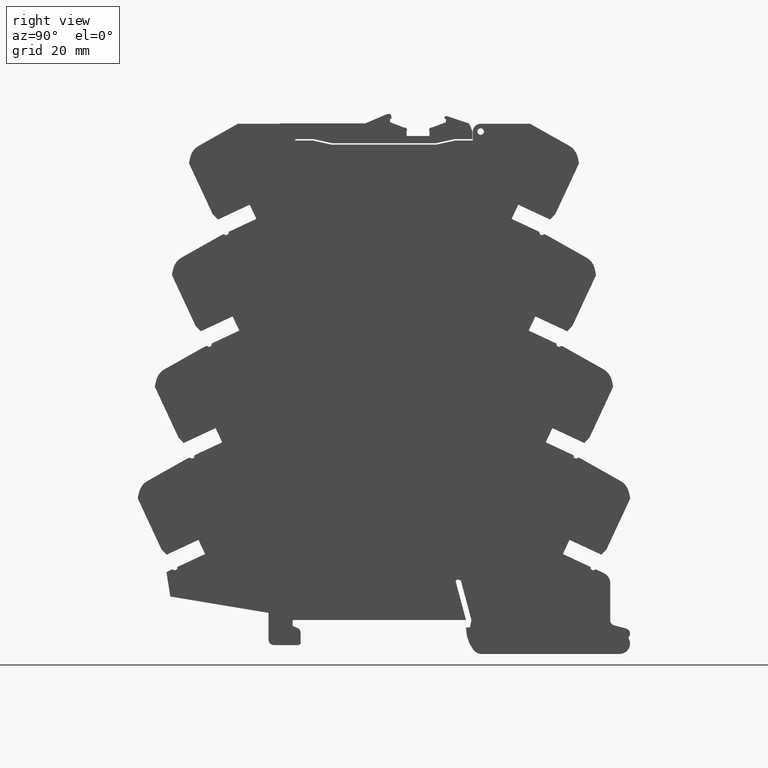
[diagram: clean part render]
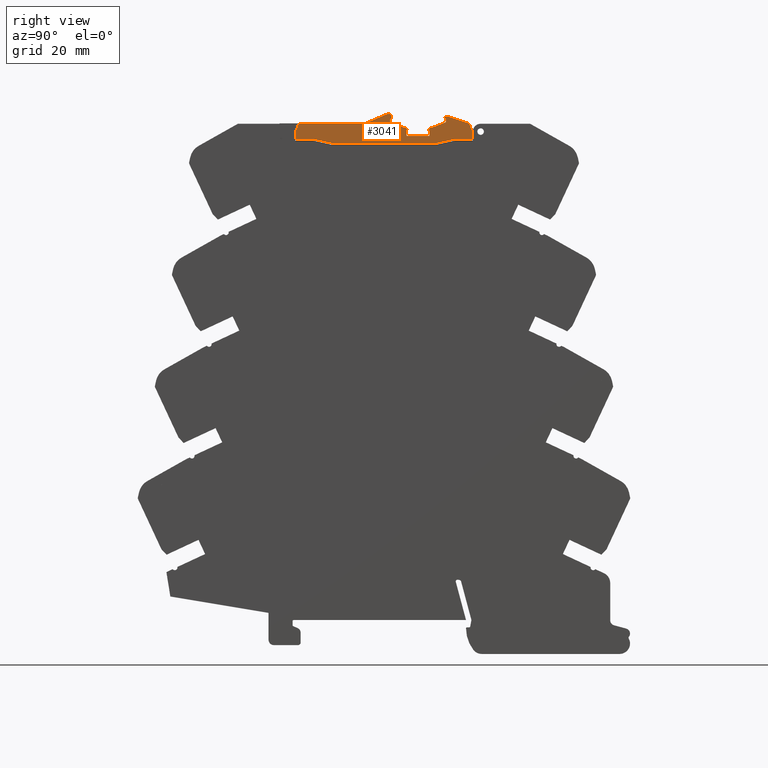
[diagram: same view with one face highlighted and labeled with its STEP entity id]
A machine part, right view. The second image highlights one B-rep face of the part: STEP entity #3041.
In plain terms, the highlighted planar face has unit normal (-1, 0, 0).
Its self-contained STEP definition (entity closure, byte-faithful):
#47 = DIRECTION ( 'NONE',  ( -1.000000000000000000, -0.000000000000000000, -0.000000000000000000 ) ) ;
#96 = EDGE_CURVE ( 'NONE', #5823, #9020, #3386, .T. ) ;
#122 = ORIENTED_EDGE ( 'NONE', *, *, #4044, .F. ) ;
#157 = CARTESIAN_POINT ( 'NONE',  ( -0.003937007874015747977, 0.06157480314960452755, 3.770098425196850567 ) ) ;
#163 = VECTOR ( 'NONE', #1775, 39.37007874015748143 ) ;
#216 = CARTESIAN_POINT ( 'NONE',  ( -0.003937007874015747977, 0.3785039370078739918, 3.711830708661417511 ) ) ;
#222 = EDGE_CURVE ( 'NONE', #632, #3673, #6010, .T. ) ;
#230 = VERTEX_POINT ( 'NONE', #403 ) ;
#232 = CARTESIAN_POINT ( 'NONE',  ( -0.003937007874015747977, 0.1891535569582921406, 3.694074803149606456 ) ) ;
#316 = EDGE_CURVE ( 'NONE', #3697, #7672, #4851, .T. ) ;
#332 = ORIENTED_EDGE ( 'NONE', *, *, #1248, .T. ) ;
#367 = CARTESIAN_POINT ( 'NONE',  ( -0.003937007874015747977, 0.04381739015909803109, 3.624429133858268148 ) ) ;
#379 = CARTESIAN_POINT ( 'NONE',  ( -0.003937007874015747977, 0.06552380445308779444, 3.785363290069200914 ) ) ;
#385 = VERTEX_POINT ( 'NONE', #881 ) ;
#403 = CARTESIAN_POINT ( 'NONE',  ( -0.003937007874015747977, 0.4830521051771244356, 3.797657480314960754 ) ) ;
#434 = DIRECTION ( 'NONE',  ( -1.000000000000000000, -0.000000000000000000, -0.000000000000000000 ) ) ;
#462 = VERTEX_POINT ( 'NONE', #5546 ) ;
#546 = CARTESIAN_POINT ( 'NONE',  ( -0.003937007874015747977, 0.06552380445308779444, 3.785363290069200914 ) ) ;
#615 = ORIENTED_EDGE ( 'NONE', *, *, #2706, .F. ) ;
#619 = EDGE_CURVE ( 'NONE', #7318, #8748, #3172, .T. ) ;
#632 = VERTEX_POINT ( 'NONE', #1188 ) ;
#753 = CIRCLE ( 'NONE', #4927, 0.01181102362204724046 ) ;
#766 = VERTEX_POINT ( 'NONE', #5785 ) ;
#777 = VECTOR ( 'NONE', #4973, 39.37007874015748143 ) ;
#798 = CARTESIAN_POINT ( 'NONE',  ( -0.003937007874015747977, 0.1855905511811023756, 3.651988188976377891 ) ) ;
#842 = CIRCLE ( 'NONE', #4345, 0.01775590551181102303 ) ;
#855 = CARTESIAN_POINT ( 'NONE',  ( -0.003937007874015747977, 0.3785039370078739918, 3.711830708661417511 ) ) ;
#858 = CIRCLE ( 'NONE', #9077, 0.01775590551181102303 ) ;
#881 = CARTESIAN_POINT ( 'NONE',  ( -0.003937007874015747977, 0.3588188976377952866, 3.651988188976377891 ) ) ;
#882 = CARTESIAN_POINT ( 'NONE',  ( -0.003937007874015747977, 0.6816535433070866068, 3.683484251968504264 ) ) ;
#896 = CARTESIAN_POINT ( 'NONE',  ( -0.003937007874015747977, 0.1855905511811023756, 3.651988188976377891 ) ) ;
#904 = VERTEX_POINT ( 'NONE', #1987 ) ;
#928 = CARTESIAN_POINT ( 'NONE',  ( -0.003937007874015747977, -0.3731496062992126217, 3.592933070866141776 ) ) ;
#931 = VECTOR ( 'NONE', #1835, 39.37007874015748854 ) ;
#971 = ORIENTED_EDGE ( 'NONE', *, *, #1577, .F. ) ;
#985 = VECTOR ( 'NONE', #7652, 39.37007874015748143 ) ;
#992 = EDGE_CURVE ( 'NONE', #8783, #10331, #3082, .T. ) ;
#999 = LINE ( 'NONE', #896, #7213 ) ;
#1001 = VERTEX_POINT ( 'NONE', #2816 ) ;
#1029 = VERTEX_POINT ( 'NONE', #3124 ) ;
#1038 = DIRECTION ( 'NONE',  ( 0.000000000000000000, 1.000000000000000000, -2.775557561563924128E-14 ) ) ;
#1060 = ORIENTED_EDGE ( 'NONE', *, *, #1616, .F. ) ;
#1081 = CARTESIAN_POINT ( 'NONE',  ( -0.003937007874015747977, 0.4788856357500354544, 3.785363292279330771 ) ) ;
#1115 = ORIENTED_EDGE ( 'NONE', *, *, #6949, .F. ) ;
#1134 = ORIENTED_EDGE ( 'NONE', *, *, #992, .F. ) ;
#1150 = LINE ( 'NONE', #367, #3273 ) ;
#1167 = CIRCLE ( 'NONE', #8724, 0.007874015748028000486 ) ;
#1176 = AXIS2_PLACEMENT_3D ( 'NONE', #379, #8577, #2464 ) ;
#1188 = CARTESIAN_POINT ( 'NONE',  ( -0.003937007874015747977, 0.06169291338582677531, 3.755925196850331105 ) ) ;
#1203 = CARTESIAN_POINT ( 'NONE',  ( -0.003937007874015747977, 0.04381739015909803109, 3.592933070866141776 ) ) ;
#1248 = EDGE_CURVE ( 'NONE', #1029, #385, #3426, .T. ) ;
#1315 = EDGE_CURVE ( 'NONE', #3094, #4123, #2032, .T. ) ;
#1345 = VECTOR ( 'NONE', #10384, 39.37007874015748143 ) ;
#1346 = VECTOR ( 'NONE', #10229, 39.37007874015748143 ) ;
#1370 = DIRECTION ( 'NONE',  ( -1.000000000000000000, -0.000000000000000000, -0.000000000000000000 ) ) ;
#1401 = DIRECTION ( 'NONE',  ( -1.000000000000000000, -0.000000000000000000, -0.000000000000000000 ) ) ;
#1419 = EDGE_CURVE ( 'NONE', #3673, #904, #7282, .T. ) ;
#1421 = DIRECTION ( 'NONE',  ( -1.000000000000000000, -0.000000000000000000, -0.000000000000000000 ) ) ;
#1443 = EDGE_CURVE ( 'NONE', #9219, #462, #753, .T. ) ;
#1497 = AXIS2_PLACEMENT_3D ( 'NONE', #546, #434, #3723 ) ;
#1555 = DIRECTION ( 'NONE',  ( 0.000000000000000000, 0.9489769688854071683, -0.3153453860849481094 ) ) ;
#1577 = EDGE_CURVE ( 'NONE', #10331, #9423, #5533, .T. ) ;
#1616 = EDGE_CURVE ( 'NONE', #1029, #1705, #7233, .T. ) ;
#1705 = VERTEX_POINT ( 'NONE', #9907 ) ;
#1755 = EDGE_CURVE ( 'NONE', #385, #9020, #10062, .T. ) ;
#1775 = DIRECTION ( 'NONE',  ( -0.000000000000000000, 1.000000000000000000, -0.000000000000000000 ) ) ;
#1783 = EDGE_LOOP ( 'NONE', ( #971, #1134, #7899, #3253, #5564, #7462, #7132, #5000, #2572, #5876, #6120, #5159, #1060, #332, #9611, #6074, #5252, #8032, #615, #7219, #2914, #9431, #2426, #3242, #9650, #1115, #3886, #3393, #9967, #5711, #122, #6891, #7649, #3349, #3627, #7261, #7841, #4180, #7457, #4420, #8070, #4086 ) ) ;
#1811 = DIRECTION ( 'NONE',  ( 0.000000000000000000, 0.3713906763541032774, 0.9284766908852594147 ) ) ;
#1835 = DIRECTION ( 'NONE',  ( 0.000000000000000000, -0.2078317377634618934, 0.9781645918648964599 ) ) ;
#1866 = DIRECTION ( 'NONE',  ( 0.000000000000000000, 1.000000000000000000, -3.077114813262629251E-14 ) ) ;
#1888 = VECTOR ( 'NONE', #8528, 39.37007874015748143 ) ;
#1897 = EDGE_CURVE ( 'NONE', #5205, #6375, #4569, .T. ) ;
#1925 = EDGE_CURVE ( 'NONE', #7818, #10207, #842, .T. ) ;
#1978 = DIRECTION ( 'NONE',  ( -0.000000000000000000, -0.000000000000000000, -1.000000000000000000 ) ) ;
#1987 = CARTESIAN_POINT ( 'NONE',  ( -0.003937007874015747977, 0.06748031494124212548, 3.777736220467449169 ) ) ;
#1993 = VERTEX_POINT ( 'NONE', #2423 ) ;
#2025 = CARTESIAN_POINT ( 'NONE',  ( -0.003937007874015747977, 0.06944822704565827010, 3.757287266612799215 ) ) ;
#2032 = LINE ( 'NONE', #5163, #8293 ) ;
#2067 = CARTESIAN_POINT ( 'NONE',  ( -0.003937007874015747977, 0.6816535433070866068, 3.624429133858268148 ) ) ;
#2072 = FACE_OUTER_BOUND ( 'NONE', #1783, .T. ) ;
#2118 = CARTESIAN_POINT ( 'NONE',  ( -0.003937007874015747977, 0.3548818897637794900, 3.648051181102362595 ) ) ;
#2132 = CARTESIAN_POINT ( 'NONE',  ( -0.003937007874015747977, 0.06944880678858543488, 3.770112234380944560 ) ) ;
#2191 = VECTOR ( 'NONE', #4124, 39.37007874015747433 ) ;
#2222 = EDGE_CURVE ( 'NONE', #7870, #9423, #3044, .T. ) ;
#2256 = EDGE_CURVE ( 'NONE', #9277, #4768, #3340, .T. ) ;
#2269 = DIRECTION ( 'NONE',  ( 0.000000000000000000, 1.000000000000000000, 0.000000000000000000 ) ) ;
#2323 = CARTESIAN_POINT ( 'NONE',  ( -0.003937007874015747977, 0.4057086614173228689, 3.592933070866141776 ) ) ;
#2385 = DIRECTION ( 'NONE',  ( 0.000000000000000000, 0.9762888217374837696, -0.2164720225581948931 ) ) ;
#2421 = VECTOR ( 'NONE', #8965, 39.37007874015748143 ) ;
#2423 = CARTESIAN_POINT ( 'NONE',  ( -0.003937007874015747977, 0.1855905511811023756, 3.683405511811023825 ) ) ;
#2426 = ORIENTED_EDGE ( 'NONE', *, *, #9925, .T. ) ;
#2464 = DIRECTION ( 'NONE',  ( 0.000000000000000000, 1.000000000000000000, -4.857225732735277969E-13 ) ) ;
#2529 = VECTOR ( 'NONE', #7760, 39.37007874015748854 ) ;
#2572 = ORIENTED_EDGE ( 'NONE', *, *, #7475, .T. ) ;
#2592 = CARTESIAN_POINT ( 'NONE',  ( -0.003937007874015747977, 0.1659055118110236149, 3.711830708661417511 ) ) ;
#2609 = EDGE_CURVE ( 'NONE', #4123, #7125, #6650, .T. ) ;
#2670 = AXIS2_PLACEMENT_3D ( 'NONE', #1081, #5843, #9917 ) ;
#2690 = CARTESIAN_POINT ( 'NONE',  ( -0.003937007874015747977, 0.1855905511811023756, 3.683405511811023825 ) ) ;
#2706 = EDGE_CURVE ( 'NONE', #10207, #1993, #858, .T. ) ;
#2710 = CARTESIAN_POINT ( 'NONE',  ( -0.003937007874015747977, 0.6583070866141732536, 3.741791338582677096 ) ) ;
#2752 = AXIS2_PLACEMENT_3D ( 'NONE', #4594, #3801, #7014 ) ;
#2777 = LINE ( 'NONE', #7777, #7298 ) ;
#2789 = LINE ( 'NONE', #5940, #4671 ) ;
#2816 = CARTESIAN_POINT ( 'NONE',  ( -0.003937007874015747977, 0.06662670236660236944, 3.749936135918437330 ) ) ;
#2839 = DIRECTION ( 'NONE',  ( 0.000000000000000000, 0.000000000000000000, 1.000000000000000000 ) ) ;
#2855 = VERTEX_POINT ( 'NONE', #2592 ) ;
#2906 = EDGE_CURVE ( 'NONE', #6868, #8748, #3312, .T. ) ;
#2914 = ORIENTED_EDGE ( 'NONE', *, *, #10118, .T. ) ;
#2915 = DIRECTION ( 'NONE',  ( 0.000000000000000000, -0.008333043996669340855, 0.9999652795861211363 ) ) ;
#2925 = CARTESIAN_POINT ( 'NONE',  ( -0.003937007874015747977, 0.3548818897637794900, 3.648051181102362595 ) ) ;
#3009 = AXIS2_PLACEMENT_3D ( 'NONE', #8107, #8057, #6516 ) ;
#3012 = AXIS2_PLACEMENT_3D ( 'NONE', #5345, #1370, #7083 ) ;
#3041 = ADVANCED_FACE ( 'NONE', ( #2072 ), #6992, .F. ) ;
#3044 = LINE ( 'NONE', #3919, #10078 ) ;
#3082 = CIRCLE ( 'NONE', #2752, 0.01968503937008551918 ) ;
#3094 = VERTEX_POINT ( 'NONE', #8047 ) ;
#3124 = CARTESIAN_POINT ( 'NONE',  ( -0.003937007874015747977, 0.3588188976377952866, 3.683405511811023825 ) ) ;
#3172 = CIRCLE ( 'NONE', #2670, 0.007874015748031175030 ) ;
#3242 = ORIENTED_EDGE ( 'NONE', *, *, #222, .T. ) ;
#3243 = CARTESIAN_POINT ( 'NONE',  ( -0.003937007874015747977, 0.4711811023622047290, 3.786988188976378122 ) ) ;
#3253 = ORIENTED_EDGE ( 'NONE', *, *, #4317, .F. ) ;
#3273 = VECTOR ( 'NONE', #8296, 39.37007874015748143 ) ;
#3293 = LINE ( 'NONE', #9722, #931 ) ;
#3295 = LINE ( 'NONE', #216, #2191 ) ;
#3312 = LINE ( 'NONE', #6526, #10266 ) ;
#3330 = VECTOR ( 'NONE', #7947, 39.37007874015748143 ) ;
#3340 = CIRCLE ( 'NONE', #8402, 0.007874015748030628592 ) ;
#3349 = ORIENTED_EDGE ( 'NONE', *, *, #9694, .F. ) ;
#3366 = EDGE_CURVE ( 'NONE', #5742, #7870, #2777, .T. ) ;
#3386 = LINE ( 'NONE', #7333, #163 ) ;
#3393 = ORIENTED_EDGE ( 'NONE', *, *, #3600, .T. ) ;
#3426 = LINE ( 'NONE', #9814, #2421 ) ;
#3449 = CIRCLE ( 'NONE', #7824, 0.01181102362204765159 ) ;
#3502 = VECTOR ( 'NONE', #7620, 39.37007874015748143 ) ;
#3510 = VECTOR ( 'NONE', #8292, 39.37007874015748143 ) ;
#3513 = CARTESIAN_POINT ( 'NONE',  ( -0.003937007874015747977, -0.6254330708661417493, 3.742539370078740379 ) ) ;
#3571 = DIRECTION ( 'NONE',  ( 0.000000000000000000, -1.000000000000000000, 0.000000000000000000 ) ) ;
#3600 = EDGE_CURVE ( 'NONE', #766, #462, #3293, .T. ) ;
#3627 = ORIENTED_EDGE ( 'NONE', *, *, #1315, .T. ) ;
#3673 = VERTEX_POINT ( 'NONE', #157 ) ;
#3693 = EDGE_CURVE ( 'NONE', #3697, #8247, #7398, .T. ) ;
#3697 = VERTEX_POINT ( 'NONE', #5762 ) ;
#3723 = DIRECTION ( 'NONE',  ( 0.000000000000000000, 1.000000000000000000, 0.000000000000000000 ) ) ;
#3738 = DIRECTION ( 'NONE',  ( 0.000000000000000000, 1.000000000000000000, 0.000000000000000000 ) ) ;
#3791 = EDGE_CURVE ( 'NONE', #5742, #5372, #1150, .T. ) ;
#3801 = DIRECTION ( 'NONE',  ( -1.000000000000000000, -0.000000000000000000, -0.000000000000000000 ) ) ;
#3852 = CARTESIAN_POINT ( 'NONE',  ( -0.003937007874015747977, -0.1254330708661417493, 3.742539370078740379 ) ) ;
#3886 = ORIENTED_EDGE ( 'NONE', *, *, #8737, .F. ) ;
#3919 = CARTESIAN_POINT ( 'NONE',  ( -0.003937007874015747977, 0.6583070866141732536, 3.741791338582677096 ) ) ;
#3939 = LINE ( 'NONE', #7154, #10204 ) ;
#3981 = DIRECTION ( 'NONE',  ( -1.000000000000000000, -0.000000000000000000, -0.000000000000000000 ) ) ;
#4044 = EDGE_CURVE ( 'NONE', #7672, #8428, #8659, .T. ) ;
#4074 = DIRECTION ( 'NONE',  ( 0.000000000000000000, -0.7071067811865690000, 0.7071067811865260344 ) ) ;
#4086 = ORIENTED_EDGE ( 'NONE', *, *, #2222, .T. ) ;
#4103 = AXIS2_PLACEMENT_3D ( 'NONE', #7231, #47, #1038 ) ;
#4123 = VERTEX_POINT ( 'NONE', #8390 ) ;
#4124 = DIRECTION ( 'NONE',  ( 0.000000000000000000, 0.9335934419935616457, 0.3583340411775223777 ) ) ;
#4176 = CARTESIAN_POINT ( 'NONE',  ( -0.003937007874015747977, -0.7711023622047243897, 3.742539370078740379 ) ) ;
#4180 = ORIENTED_EDGE ( 'NONE', *, *, #7726, .F. ) ;
#4305 = CARTESIAN_POINT ( 'NONE',  ( -0.003937007874015747977, 0.3730117973724177416, 3.694074803149606456 ) ) ;
#4317 = EDGE_CURVE ( 'NONE', #6868, #230, #3449, .T. ) ;
#4345 = AXIS2_PLACEMENT_3D ( 'NONE', #7048, #3981, #2269 ) ;
#4366 = CARTESIAN_POINT ( 'NONE',  ( -0.003937007874015747977, 0.04381739015909803109, 3.793720514883752504 ) ) ;
#4369 = VERTEX_POINT ( 'NONE', #5538 ) ;
#4420 = ORIENTED_EDGE ( 'NONE', *, *, #3791, .F. ) ;
#4569 = LINE ( 'NONE', #7997, #3330 ) ;
#4594 = CARTESIAN_POINT ( 'NONE',  ( -0.003937007874015747977, 0.4870025383501614402, 3.777972577806129717 ) ) ;
#4671 = VECTOR ( 'NONE', #9209, 39.37007874015748143 ) ;
#4685 = LINE ( 'NONE', #6999, #1345 ) ;
#4692 = DIRECTION ( 'NONE',  ( -1.000000000000000000, -0.000000000000000000, -0.000000000000000000 ) ) ;
#4768 = VERTEX_POINT ( 'NONE', #9628 ) ;
#4851 = LINE ( 'NONE', #3852, #9056 ) ;
#4927 = AXIS2_PLACEMENT_3D ( 'NONE', #7589, #9385, #3738 ) ;
#4973 = DIRECTION ( 'NONE',  ( 0.000000000000000000, -1.000000000000000000, 0.000000000000000000 ) ) ;
#5000 = ORIENTED_EDGE ( 'NONE', *, *, #1897, .T. ) ;
#5058 = DIRECTION ( 'NONE',  ( 0.000000000000000000, 1.000000000000000000, -6.938893903910309353E-14 ) ) ;
#5071 = CARTESIAN_POINT ( 'NONE',  ( -0.003937007874015747977, -0.6136220472440945262, 3.624429133858268148 ) ) ;
#5159 = ORIENTED_EDGE ( 'NONE', *, *, #8368, .T. ) ;
#5163 = CARTESIAN_POINT ( 'NONE',  ( -0.003937007874015747977, -0.6490551181102363065, 3.624429133858268148 ) ) ;
#5191 = CIRCLE ( 'NONE', #3012, 0.007874015748010755600 ) ;
#5205 = VERTEX_POINT ( 'NONE', #7428 ) ;
#5252 = ORIENTED_EDGE ( 'NONE', *, *, #8972, .T. ) ;
#5289 = CARTESIAN_POINT ( 'NONE',  ( -0.003937007874015747977, 0.4769291338778268163, 3.777736220467405648 ) ) ;
#5324 = DIRECTION ( 'NONE',  ( -1.000000000000000000, -0.000000000000000000, -0.000000000000000000 ) ) ;
#5325 = LINE ( 'NONE', #9491, #1346 ) ;
#5345 = CARTESIAN_POINT ( 'NONE',  ( -0.003937007874015747977, 0.4749606299223976813, 3.757283892441476425 ) ) ;
#5372 = VERTEX_POINT ( 'NONE', #10173 ) ;
#5433 = DIRECTION ( 'NONE',  ( 0.000000000000000000, 1.000000000000000000, -4.625929269271326130E-14 ) ) ;
#5448 = VERTEX_POINT ( 'NONE', #2323 ) ;
#5480 = EDGE_CURVE ( 'NONE', #7125, #9355, #3939, .T. ) ;
#5533 = LINE ( 'NONE', #8757, #6590 ) ;
#5534 = DIRECTION ( 'NONE',  ( 0.000000000000000000, 1.000000000000000000, 0.000000000000000000 ) ) ;
#5538 = CARTESIAN_POINT ( 'NONE',  ( -0.003937007874015747977, 0.07339782020111894345, 3.785363290069200914 ) ) ;
#5546 = CARTESIAN_POINT ( 'NONE',  ( -0.003937007874015747977, 0.06960337406747618694, 3.804049200329976621 ) ) ;
#5564 = ORIENTED_EDGE ( 'NONE', *, *, #2906, .T. ) ;
#5711 = ORIENTED_EDGE ( 'NONE', *, *, #6454, .T. ) ;
#5733 = EDGE_CURVE ( 'NONE', #6996, #1993, #8425, .T. ) ;
#5742 = VERTEX_POINT ( 'NONE', #2067 ) ;
#5762 = CARTESIAN_POINT ( 'NONE',  ( -0.003937007874015747977, -0.1254330708661417493, 3.742539370078740379 ) ) ;
#5785 = CARTESIAN_POINT ( 'NONE',  ( -0.003937007874015747977, 0.07322588781502126221, 3.786999760626858613 ) ) ;
#5823 = VERTEX_POINT ( 'NONE', #9368 ) ;
#5843 = DIRECTION ( 'NONE',  ( -1.000000000000000000, -0.000000000000000000, -0.000000000000000000 ) ) ;
#5847 = CIRCLE ( 'NONE', #1497, 0.007874015748031142070 ) ;
#5876 = ORIENTED_EDGE ( 'NONE', *, *, #2256, .T. ) ;
#5940 = CARTESIAN_POINT ( 'NONE',  ( -0.003937007874015747977, 0.5477952755905511895, 3.624429133858268148 ) ) ;
#6010 = LINE ( 'NONE', #7010, #9578 ) ;
#6063 = CARTESIAN_POINT ( 'NONE',  ( -0.003937007874015747977, 0.06662670557083111289, 3.749936134688583333 ) ) ;
#6074 = ORIENTED_EDGE ( 'NONE', *, *, #96, .F. ) ;
#6120 = ORIENTED_EDGE ( 'NONE', *, *, #8896, .F. ) ;
#6270 = CARTESIAN_POINT ( 'NONE',  ( -0.003937007874015747977, 0.04385826771653543454, 3.813405511811023718 ) ) ;
#6374 = CARTESIAN_POINT ( 'NONE',  ( -0.003937007874015747977, 0.1713976514464811141, 3.694074803149606456 ) ) ;
#6375 = VERTEX_POINT ( 'NONE', #9620 ) ;
#6454 = EDGE_CURVE ( 'NONE', #9219, #8428, #9820, .T. ) ;
#6516 = DIRECTION ( 'NONE',  ( 0.000000000000000000, 1.000000000000000000, 0.000000000000000000 ) ) ;
#6526 = CARTESIAN_POINT ( 'NONE',  ( -0.003937007874015747977, 0.4711811023622047290, 3.786988188976378122 ) ) ;
#6590 = VECTOR ( 'NONE', #1555, 39.37007874015748854 ) ;
#6624 = DIRECTION ( 'NONE',  ( 0.000000000000000000, -0.2356000256191908560, -0.9718501056892654422 ) ) ;
#6629 = LINE ( 'NONE', #7376, #8046 ) ;
#6650 = LINE ( 'NONE', #5071, #3510 ) ;
#6721 = DIRECTION ( 'NONE',  ( 0.000000000000000000, 0.000000000000000000, 1.000000000000000000 ) ) ;
#6750 = CARTESIAN_POINT ( 'NONE',  ( -0.003937007874015747977, 0.04385826771653543454, 3.813405511811023718 ) ) ;
#6868 = VERTEX_POINT ( 'NONE', #7740 ) ;
#6891 = ORIENTED_EDGE ( 'NONE', *, *, #316, .F. ) ;
#6898 = EDGE_CURVE ( 'NONE', #5372, #5448, #2789, .T. ) ;
#6905 = DIRECTION ( 'NONE',  ( -1.000000000000000000, -0.000000000000000000, -0.000000000000000000 ) ) ;
#6949 = EDGE_CURVE ( 'NONE', #4369, #904, #5847, .T. ) ;
#6992 = PLANE ( 'NONE',  #7566 ) ;
#6996 = VERTEX_POINT ( 'NONE', #798 ) ;
#6999 = CARTESIAN_POINT ( 'NONE',  ( -0.003937007874015747977, 0.1659055118110236149, 3.711830708661417511 ) ) ;
#7010 = CARTESIAN_POINT ( 'NONE',  ( -0.003937007874015747977, 0.06157480314960473572, 3.770098425196850567 ) ) ;
#7014 = DIRECTION ( 'NONE',  ( 0.000000000000000000, 1.000000000000000000, 0.000000000000000000 ) ) ;
#7048 = CARTESIAN_POINT ( 'NONE',  ( -0.003937007874015747977, 0.1713976514464811141, 3.694074803149606456 ) ) ;
#7078 = CARTESIAN_POINT ( 'NONE',  ( -0.003937007874015747977, 0.05805025307207165725, 3.813405511811023718 ) ) ;
#7083 = DIRECTION ( 'NONE',  ( 0.000000000000000000, 1.000000000000000000, 0.000000000000000000 ) ) ;
#7125 = VERTEX_POINT ( 'NONE', #7996 ) ;
#7132 = ORIENTED_EDGE ( 'NONE', *, *, #10130, .T. ) ;
#7143 = VECTOR ( 'NONE', #2839, 39.37007874015748143 ) ;
#7154 = CARTESIAN_POINT ( 'NONE',  ( -0.003937007874015747977, -0.3731496062992126217, 3.592933070866141776 ) ) ;
#7213 = VECTOR ( 'NONE', #4074, 39.37007874015748143 ) ;
#7219 = ORIENTED_EDGE ( 'NONE', *, *, #1925, .F. ) ;
#7230 = VERTEX_POINT ( 'NONE', #855 ) ;
#7231 = CARTESIAN_POINT ( 'NONE',  ( -0.003937007874015747977, 0.04381739015909803109, 3.793720514883752504 ) ) ;
#7233 = CIRCLE ( 'NONE', #8427, 0.01775590551181102303 ) ;
#7261 = ORIENTED_EDGE ( 'NONE', *, *, #2609, .T. ) ;
#7282 = CIRCLE ( 'NONE', #8462, 0.007874015748031662487 ) ;
#7298 = VECTOR ( 'NONE', #6721, 39.37007874015748143 ) ;
#7318 = VERTEX_POINT ( 'NONE', #5289 ) ;
#7333 = CARTESIAN_POINT ( 'NONE',  ( -0.003937007874015747977, 0.04381739015909803109, 3.648051181102362595 ) ) ;
#7351 = VECTOR ( 'NONE', #8340, 39.37007874015748143 ) ;
#7368 = DIRECTION ( 'NONE',  ( -1.000000000000000000, -0.000000000000000000, -0.000000000000000000 ) ) ;
#7376 = CARTESIAN_POINT ( 'NONE',  ( -0.003937007874015747977, -0.6490551181102363065, 3.683484251968504264 ) ) ;
#7398 = LINE ( 'NONE', #4176, #777 ) ;
#7428 = CARTESIAN_POINT ( 'NONE',  ( -0.003937007874015747977, 0.4828346456692913513, 3.770112235944212298 ) ) ;
#7457 = ORIENTED_EDGE ( 'NONE', *, *, #6898, .F. ) ;
#7462 = ORIENTED_EDGE ( 'NONE', *, *, #619, .F. ) ;
#7475 = EDGE_CURVE ( 'NONE', #6375, #9277, #5191, .T. ) ;
#7566 = AXIS2_PLACEMENT_3D ( 'NONE', #4366, #7581, #3571 ) ;
#7581 = DIRECTION ( 'NONE',  ( -1.000000000000000000, 0.000000000000000000, 0.000000000000000000 ) ) ;
#7589 = CARTESIAN_POINT ( 'NONE',  ( -0.003937007874015747977, 0.05805025036411063516, 3.801594488188976051 ) ) ;
#7620 = DIRECTION ( 'NONE',  ( 0.000000000000000000, -1.000000000000000000, -1.268324070306960019E-12 ) ) ;
#7649 = ORIENTED_EDGE ( 'NONE', *, *, #3693, .T. ) ;
#7652 = DIRECTION ( 'NONE',  ( 0.000000000000000000, -1.000000000000000000, 0.000000000000000000 ) ) ;
#7672 = VERTEX_POINT ( 'NONE', #9294 ) ;
#7675 = CARTESIAN_POINT ( 'NONE',  ( -0.003937007874015747977, 0.4830521070764567382, 3.797657480314960754 ) ) ;
#7726 = EDGE_CURVE ( 'NONE', #5448, #9355, #9243, .T. ) ;
#7740 = CARTESIAN_POINT ( 'NONE',  ( -0.003937007874015747977, 0.4714960629921780000, 3.788287401575015867 ) ) ;
#7758 = CARTESIAN_POINT ( 'NONE',  ( -0.003937007874015747977, 0.4830521032778070656, 3.785846456692913531 ) ) ;
#7760 = DIRECTION ( 'NONE',  ( 0.000000000000000000, 0.9335934419935474349, -0.3583340411775592926 ) ) ;
#7777 = CARTESIAN_POINT ( 'NONE',  ( -0.003937007874015747977, 0.6816535433070866068, 3.683484251968504264 ) ) ;
#7818 = VERTEX_POINT ( 'NONE', #10191 ) ;
#7824 = AXIS2_PLACEMENT_3D ( 'NONE', #7758, #1401, #5433 ) ;
#7841 = ORIENTED_EDGE ( 'NONE', *, *, #5480, .T. ) ;
#7870 = VERTEX_POINT ( 'NONE', #882 ) ;
#7899 = ORIENTED_EDGE ( 'NONE', *, *, #8618, .T. ) ;
#7947 = DIRECTION ( 'NONE',  ( -0.000000000000000000, -0.000000000000000000, -1.000000000000000000 ) ) ;
#7976 = CARTESIAN_POINT ( 'NONE',  ( -0.003937007874015747977, 0.4827165354330196778, 3.755925196850027792 ) ) ;
#7996 = CARTESIAN_POINT ( 'NONE',  ( -0.003937007874015747977, -0.5151968503937007782, 3.624429133858268148 ) ) ;
#7997 = CARTESIAN_POINT ( 'NONE',  ( -0.003937007874015747977, 0.4828346456692913513, 3.757284025005905637 ) ) ;
#8032 = ORIENTED_EDGE ( 'NONE', *, *, #5733, .T. ) ;
#8046 = VECTOR ( 'NONE', #1811, 39.37007874015748854 ) ;
#8047 = CARTESIAN_POINT ( 'NONE',  ( -0.003937007874015747977, -0.6490551181102363065, 3.683484251968504264 ) ) ;
#8057 = DIRECTION ( 'NONE',  ( -1.000000000000000000, -0.000000000000000000, -0.000000000000000000 ) ) ;
#8070 = ORIENTED_EDGE ( 'NONE', *, *, #3366, .T. ) ;
#8076 = DIRECTION ( 'NONE',  ( 0.000000000000000000, 0.9190175411928306337, 0.3942166396537363227 ) ) ;
#8107 = CARTESIAN_POINT ( 'NONE',  ( -0.003937007874015747977, 0.4749606299212598692, 3.770112237507480923 ) ) ;
#8247 = VERTEX_POINT ( 'NONE', #3513 ) ;
#8292 = DIRECTION ( 'NONE',  ( -0.000000000000000000, 1.000000000000000000, -0.000000000000000000 ) ) ;
#8293 = VECTOR ( 'NONE', #1978, 39.37007874015748143 ) ;
#8296 = DIRECTION ( 'NONE',  ( 0.000000000000000000, -1.000000000000000000, 0.000000000000000000 ) ) ;
#8340 = DIRECTION ( 'NONE',  ( 0.000000000000000000, -1.000000000000000000, -2.694891775568940071E-13 ) ) ;
#8368 = EDGE_CURVE ( 'NONE', #7230, #1705, #5325, .T. ) ;
#8389 = CIRCLE ( 'NONE', #3009, 0.007874015748032267906 ) ;
#8390 = CARTESIAN_POINT ( 'NONE',  ( -0.003937007874015747977, -0.6490551181102363065, 3.624429133858268148 ) ) ;
#8402 = AXIS2_PLACEMENT_3D ( 'NONE', #10363, #1421, #9519 ) ;
#8425 = LINE ( 'NONE', #2690, #7143 ) ;
#8427 = AXIS2_PLACEMENT_3D ( 'NONE', #4305, #7368, #1866 ) ;
#8428 = VERTEX_POINT ( 'NONE', #6270 ) ;
#8462 = AXIS2_PLACEMENT_3D ( 'NONE', #2132, #5324, #8539 ) ;
#8518 = LINE ( 'NONE', #7675, #3502 ) ;
#8528 = DIRECTION ( 'NONE',  ( 0.000000000000000000, -0.7071067811864679697, -0.7071067811866270647 ) ) ;
#8539 = DIRECTION ( 'NONE',  ( 0.000000000000000000, 1.000000000000000000, 0.000000000000000000 ) ) ;
#8577 = DIRECTION ( 'NONE',  ( -1.000000000000000000, -0.000000000000000000, -0.000000000000000000 ) ) ;
#8618 = EDGE_CURVE ( 'NONE', #8783, #230, #8518, .T. ) ;
#8619 = DIRECTION ( 'NONE',  ( 0.000000000000000000, -0.3717148802147739461, 0.9283469436729547830 ) ) ;
#8659 = CIRCLE ( 'NONE', #4103, 0.01968503937007141588 ) ;
#8724 = AXIS2_PLACEMENT_3D ( 'NONE', #2025, #6905, #5058 ) ;
#8737 = EDGE_CURVE ( 'NONE', #766, #4369, #9229, .T. ) ;
#8748 = VERTEX_POINT ( 'NONE', #3243 ) ;
#8757 = CARTESIAN_POINT ( 'NONE',  ( -0.003937007874015747977, 0.4931496062992126173, 3.796673228346456597 ) ) ;
#8783 = VERTEX_POINT ( 'NONE', #8881 ) ;
#8881 = CARTESIAN_POINT ( 'NONE',  ( -0.003937007874015747977, 0.4869291338582677486, 3.797657480314960754 ) ) ;
#8896 = EDGE_CURVE ( 'NONE', #7230, #4768, #3295, .T. ) ;
#8965 = DIRECTION ( 'NONE',  ( -0.000000000000000000, -0.000000000000000000, -1.000000000000000000 ) ) ;
#8972 = EDGE_CURVE ( 'NONE', #5823, #6996, #999, .T. ) ;
#9020 = VERTEX_POINT ( 'NONE', #2925 ) ;
#9056 = VECTOR ( 'NONE', #8076, 39.37007874015748854 ) ;
#9077 = AXIS2_PLACEMENT_3D ( 'NONE', #6374, #4692, #5534 ) ;
#9209 = DIRECTION ( 'NONE',  ( 0.000000000000000000, -0.9763014966003554784, -0.2164148510058999109 ) ) ;
#9219 = VERTEX_POINT ( 'NONE', #7078 ) ;
#9229 = CIRCLE ( 'NONE', #1176, 0.007874015748031142070 ) ;
#9243 = LINE ( 'NONE', #1203, #985 ) ;
#9277 = VERTEX_POINT ( 'NONE', #7976 ) ;
#9294 = CARTESIAN_POINT ( 'NONE',  ( -0.003937007874015747977, 0.03610236220472440999, 3.811830708661417599 ) ) ;
#9355 = VERTEX_POINT ( 'NONE', #928 ) ;
#9368 = CARTESIAN_POINT ( 'NONE',  ( -0.003937007874015747977, 0.1895275590551181166, 3.648051181102362595 ) ) ;
#9385 = DIRECTION ( 'NONE',  ( -1.000000000000000000, -0.000000000000000000, -0.000000000000000000 ) ) ;
#9423 = VERTEX_POINT ( 'NONE', #2710 ) ;
#9431 = ORIENTED_EDGE ( 'NONE', *, *, #9488, .F. ) ;
#9488 = EDGE_CURVE ( 'NONE', #1001, #2855, #9975, .T. ) ;
#9491 = CARTESIAN_POINT ( 'NONE',  ( -0.003937007874015747977, 0.3730117891513389794, 3.711830708661417511 ) ) ;
#9519 = DIRECTION ( 'NONE',  ( 0.000000000000000000, 1.000000000000000000, 0.000000000000000000 ) ) ;
#9578 = VECTOR ( 'NONE', #2915, 39.37007874015748854 ) ;
#9611 = ORIENTED_EDGE ( 'NONE', *, *, #1755, .T. ) ;
#9620 = CARTESIAN_POINT ( 'NONE',  ( -0.003937007874015747977, 0.4828346456698504596, 3.757283892441476425 ) ) ;
#9628 = CARTESIAN_POINT ( 'NONE',  ( -0.003937007874015747977, 0.4777827464522969025, 3.749936135918433333 ) ) ;
#9650 = ORIENTED_EDGE ( 'NONE', *, *, #1419, .T. ) ;
#9694 = EDGE_CURVE ( 'NONE', #3094, #8247, #6629, .T. ) ;
#9722 = CARTESIAN_POINT ( 'NONE',  ( -0.003937007874015688996, 0.06960337267008268047, 3.804049206906838343 ) ) ;
#9814 = CARTESIAN_POINT ( 'NONE',  ( -0.003937007874015747977, 0.3588188976377952866, 3.651988188976377891 ) ) ;
#9820 = LINE ( 'NONE', #6750, #7351 ) ;
#9844 = CARTESIAN_POINT ( 'NONE',  ( -0.003937007874015747977, 0.4931496062992126173, 3.796673228346456597 ) ) ;
#9907 = CARTESIAN_POINT ( 'NONE',  ( -0.003937007874015747977, 0.3730117932618783327, 3.711830708661417511 ) ) ;
#9917 = DIRECTION ( 'NONE',  ( 0.000000000000000000, 1.000000000000000000, 0.000000000000000000 ) ) ;
#9925 = EDGE_CURVE ( 'NONE', #1001, #632, #1167, .T. ) ;
#9967 = ORIENTED_EDGE ( 'NONE', *, *, #1443, .F. ) ;
#9975 = LINE ( 'NONE', #6063, #2529 ) ;
#10062 = LINE ( 'NONE', #2118, #1888 ) ;
#10078 = VECTOR ( 'NONE', #8619, 39.37007874015748143 ) ;
#10118 = EDGE_CURVE ( 'NONE', #7818, #2855, #4685, .T. ) ;
#10130 = EDGE_CURVE ( 'NONE', #7318, #5205, #8389, .T. ) ;
#10173 = CARTESIAN_POINT ( 'NONE',  ( -0.003937007874015747977, 0.5477952755905511895, 3.624429133858268148 ) ) ;
#10191 = CARTESIAN_POINT ( 'NONE',  ( -0.003937007874015747977, 0.1713976555570204674, 3.711830708661417511 ) ) ;
#10204 = VECTOR ( 'NONE', #2385, 39.37007874015748143 ) ;
#10207 = VERTEX_POINT ( 'NONE', #232 ) ;
#10229 = DIRECTION ( 'NONE',  ( 0.000000000000000000, -1.000000000000000000, 0.000000000000000000 ) ) ;
#10266 = VECTOR ( 'NONE', #6624, 39.37007874015748854 ) ;
#10331 = VERTEX_POINT ( 'NONE', #9844 ) ;
#10363 = CARTESIAN_POINT ( 'NONE',  ( -0.003937007874015747977, 0.4749612217732401831, 3.757287266612803212 ) ) ;
#10384 = DIRECTION ( 'NONE',  ( 0.000000000000000000, -1.000000000000000000, 0.000000000000000000 ) ) ;